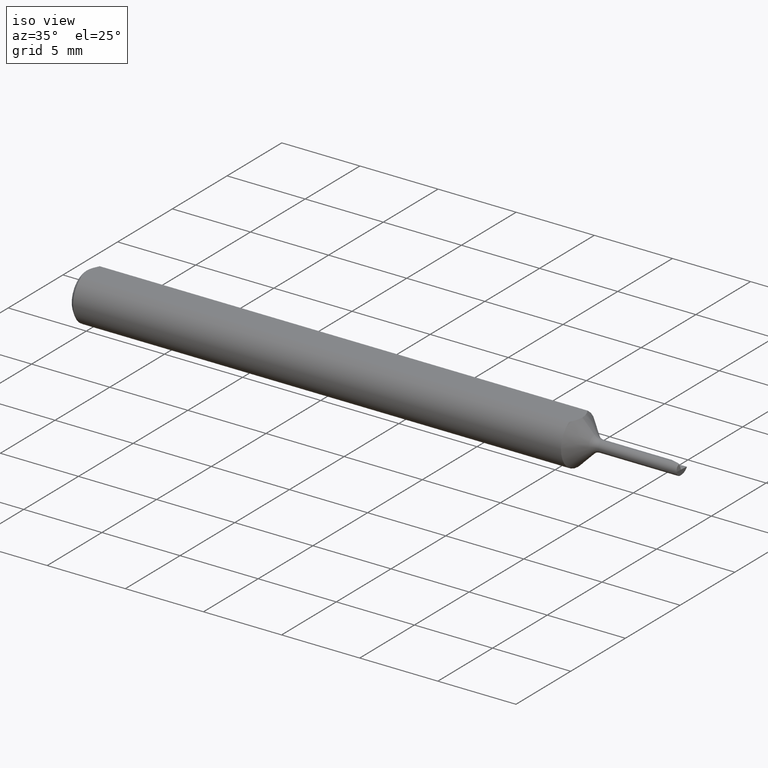
[diagram: clean part render]
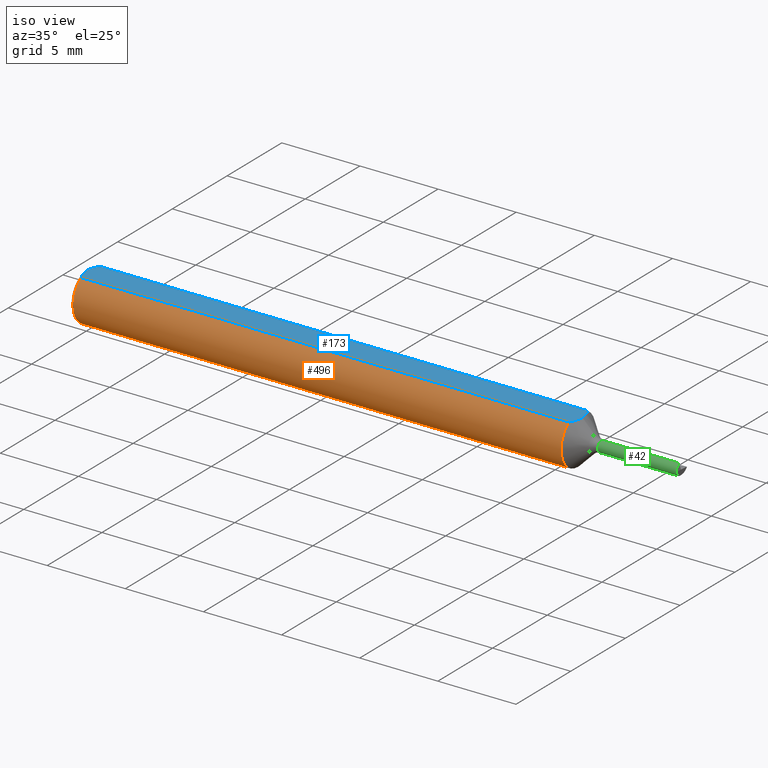
[diagram: same view with three faces highlighted in distinct colors, each labeled with its STEP entity id]
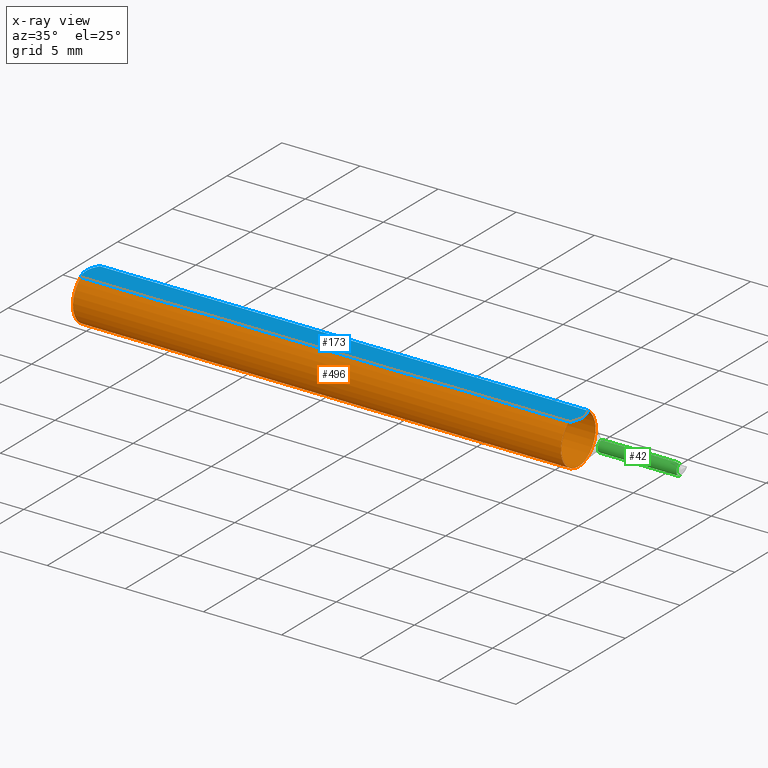
[diagram: x-ray of the same camera — body ghosted, the three highlighted faces saturated]
A machine part, iso view with three faces highlighted in distinct colors.
The next image is the same camera in x-ray (body ghosted, the three faces saturated) — at least one of them is partly hidden behind the body in this view.
Their STEP definitions:

[orange] entity #496 — the highlighted cylindrical surface (edge-blend (fillet) strip) has radius 1.5837 mm, axis along (-1, -0, -0).
#8 = VERTEX_POINT ( 'NONE', #613 ) ;
#23 = CARTESIAN_POINT ( 'NONE',  ( 0.000000000000000000, -0.03386738844375220686, 0.05235000000000000070 ) ) ;
#27 = CARTESIAN_POINT ( 'NONE',  ( 0.000000000000000000, 0.000000000000000000, 0.000000000000000000 ) ) ;
#34 = CARTESIAN_POINT ( 'NONE',  ( 0.009999999999999890921, 0.03386738844375217911, 0.05235000000000001458 ) ) ;
#36 = EDGE_CURVE ( 'NONE', #8, #101, #268, .T. ) ;
#39 = CARTESIAN_POINT ( 'NONE',  ( 0.009999999999999887451, 0.000000000000000000, 0.000000000000000000 ) ) ;
#45 = LINE ( 'NONE', #139, #115 ) ;
#52 = CARTESIAN_POINT ( 'NONE',  ( 1.239649999999999919, 0.000000000000000000, 0.000000000000000000 ) ) ;
#79 = CARTESIAN_POINT ( 'NONE',  ( 1.239649999999999919, 0.03386738844375220686, 0.05235000000000000070 ) ) ;
#87 = VERTEX_POINT ( 'NONE', #609 ) ;
#101 = VERTEX_POINT ( 'NONE', #635 ) ;
#109 = CIRCLE ( 'NONE', #477, 0.06235000000000000264 ) ;
#115 = VECTOR ( 'NONE', #218, 39.37007874015748143 ) ;
#120 = DIRECTION ( 'NONE',  ( 1.000000000000000000, 0.000000000000000000, 0.000000000000000000 ) ) ;
#139 = CARTESIAN_POINT ( 'NONE',  ( 0.000000000000000000, 0.03386738844375220686, 0.05235000000000000070 ) ) ;
#152 = ORIENTED_EDGE ( 'NONE', *, *, #167, .T. ) ;
#162 = AXIS2_PLACEMENT_3D ( 'NONE', #27, #511, #216 ) ;
#167 = EDGE_CURVE ( 'NONE', #101, #87, #336, .T. ) ;
#179 = DIRECTION ( 'NONE',  ( 0.000000000000000000, 0.000000000000000000, -1.000000000000000000 ) ) ;
#202 = CIRCLE ( 'NONE', #484, 0.06235000000000000264 ) ;
#210 = ORIENTED_EDGE ( 'NONE', *, *, #332, .T. ) ;
#216 = DIRECTION ( 'NONE',  ( 0.000000000000000000, 0.000000000000000000, 1.000000000000000000 ) ) ;
#218 = DIRECTION ( 'NONE',  ( 1.000000000000000000, 0.000000000000000000, 0.000000000000000000 ) ) ;
#223 = FACE_OUTER_BOUND ( 'NONE', #318, .T. ) ;
#227 = DIRECTION ( 'NONE',  ( 1.000000000000000000, 0.000000000000000000, 0.000000000000000000 ) ) ;
#235 = CIRCLE ( 'NONE', #328, 0.06235000000000000264 ) ;
#246 = VERTEX_POINT ( 'NONE', #34 ) ;
#259 = DIRECTION ( 'NONE',  ( 0.000000000000000000, 0.000000000000000000, 1.000000000000000000 ) ) ;
#268 = LINE ( 'NONE', #23, #487 ) ;
#279 = CYLINDRICAL_SURFACE ( 'NONE', #162, 0.06235000000000000264 ) ;
#303 = ORIENTED_EDGE ( 'NONE', *, *, #371, .T. ) ;
#318 = EDGE_LOOP ( 'NONE', ( #643, #210, #455, #152, #402, #303 ) ) ;
#321 = VERTEX_POINT ( 'NONE', #408 ) ;
#328 = AXIS2_PLACEMENT_3D ( 'NONE', #427, #366, #471 ) ;
#332 = EDGE_CURVE ( 'NONE', #321, #8, #202, .T. ) ;
#336 = CIRCLE ( 'NONE', #552, 0.06235000000000000264 ) ;
#366 = DIRECTION ( 'NONE',  ( -1.000000000000000000, -0.000000000000000000, -0.000000000000000000 ) ) ;
#371 = EDGE_CURVE ( 'NONE', #246, #551, #45, .T. ) ;
#387 = DIRECTION ( 'NONE',  ( 0.000000000000000000, 0.000000000000000000, -1.000000000000000000 ) ) ;
#402 = ORIENTED_EDGE ( 'NONE', *, *, #636, .T. ) ;
#408 = CARTESIAN_POINT ( 'NONE',  ( 1.239649999999999919, 7.635672792683746671E-18, -0.06235000000000000264 ) ) ;
#427 = CARTESIAN_POINT ( 'NONE',  ( 1.239649999999999919, 0.000000000000000000, 0.000000000000000000 ) ) ;
#453 = EDGE_CURVE ( 'NONE', #551, #321, #235, .T. ) ;
#455 = ORIENTED_EDGE ( 'NONE', *, *, #36, .T. ) ;
#467 = DIRECTION ( 'NONE',  ( -1.000000000000000000, -0.000000000000000000, -0.000000000000000000 ) ) ;
#471 = DIRECTION ( 'NONE',  ( 0.000000000000000000, 0.000000000000000000, 1.000000000000000000 ) ) ;
#477 = AXIS2_PLACEMENT_3D ( 'NONE', #519, #120, #387 ) ;
#484 = AXIS2_PLACEMENT_3D ( 'NONE', #52, #645, #259 ) ;
#487 = VECTOR ( 'NONE', #467, 39.37007874015748143 ) ;
#496 = ADVANCED_FACE ( 'NONE', ( #223 ), #279, .T. ) ;
#511 = DIRECTION ( 'NONE',  ( -1.000000000000000000, -0.000000000000000000, -0.000000000000000000 ) ) ;
#519 = CARTESIAN_POINT ( 'NONE',  ( 0.009999999999999887451, 0.000000000000000000, 0.000000000000000000 ) ) ;
#551 = VERTEX_POINT ( 'NONE', #79 ) ;
#552 = AXIS2_PLACEMENT_3D ( 'NONE', #39, #227, #179 ) ;
#609 = CARTESIAN_POINT ( 'NONE',  ( 0.009999999999999887451, 0.000000000000000000, -0.06235000000000000264 ) ) ;
#613 = CARTESIAN_POINT ( 'NONE',  ( 1.239649999999999919, -0.03386738844375220686, 0.05235000000000000070 ) ) ;
#635 = CARTESIAN_POINT ( 'NONE',  ( 0.01000000000000840841, -0.03386738844395137393, 0.05235000000000001458 ) ) ;
#636 = EDGE_CURVE ( 'NONE', #87, #246, #109, .T. ) ;
#643 = ORIENTED_EDGE ( 'NONE', *, *, #453, .T. ) ;
#645 = DIRECTION ( 'NONE',  ( -1.000000000000000000, -0.000000000000000000, -0.000000000000000000 ) ) ;

[blue] entity #173 — the highlighted planar face has unit normal (0, 0, -1).
#6 = CARTESIAN_POINT ( 'NONE',  ( 0.007163450771416182694, -0.02864528976632487248, 0.05235000000000001458 ) ) ;
#8 = VERTEX_POINT ( 'NONE', #613 ) ;
#20 = EDGE_CURVE ( 'NONE', #551, #607, #581, .T. ) ;
#23 = CARTESIAN_POINT ( 'NONE',  ( 0.000000000000000000, -0.03386738844375220686, 0.05235000000000000070 ) ) ;
#34 = CARTESIAN_POINT ( 'NONE',  ( 0.009999999999999890921, 0.03386738844375217911, 0.05235000000000001458 ) ) ;
#35 = DIRECTION ( 'NONE',  ( 0.000000000000000000, 0.000000000000000000, -1.000000000000000000 ) ) ;
#36 = EDGE_CURVE ( 'NONE', #8, #101, #268, .T. ) ;
#45 = LINE ( 'NONE', #139, #115 ) ;
#48 = CARTESIAN_POINT ( 'NONE',  ( 0.004679365186825695105, -0.02325953974091124477, 0.05235000000000000764 ) ) ;
#49 = EDGE_LOOP ( 'NONE', ( #549, #313, #509, #266, #457, #532 ) ) ;
#61 = CARTESIAN_POINT ( 'NONE',  ( 1.249649999999999928, 0.005921060704595572551, 0.05235000000000002152 ) ) ;
#70 = CARTESIAN_POINT ( 'NONE',  ( 1.239649999999999919, 0.03386738844375220686, 0.05235000000000000070 ) ) ;
#79 = CARTESIAN_POINT ( 'NONE',  ( 1.239649999999999919, 0.03386738844375220686, 0.05235000000000000070 ) ) ;
#81 = CARTESIAN_POINT ( 'NONE',  ( -1.099542139246802830E-15, 0.005954997531773979953, 0.05235000000000002152 ) ) ;
#100 = CARTESIAN_POINT ( 'NONE',  ( 1.242499562682860104, -0.02862133194396088848, 0.05235000000000002152 ) ) ;
#101 = VERTEX_POINT ( 'NONE', #635 ) ;
#114 = CARTESIAN_POINT ( 'NONE',  ( 1.244987470951200326, 0.02320690041070302967, 0.05235000000000002152 ) ) ;
#115 = VECTOR ( 'NONE', #218, 39.37007874015748143 ) ;
#117 = CARTESIAN_POINT ( 'NONE',  ( 1.249650000000000150, -3.532469938474420466E-21, 0.05235000000000001458 ) ) ;
#125 = CARTESIAN_POINT ( 'NONE',  ( 0.007185421074056205608, 0.02868573718286560742, 0.05235000000000002152 ) ) ;
#126 = CARTESIAN_POINT ( 'NONE',  ( 1.500000000000000222, 0.06235000000000000264, 0.05235000000000001458 ) ) ;
#139 = CARTESIAN_POINT ( 'NONE',  ( 0.000000000000000000, 0.03386738844375220686, 0.05235000000000000070 ) ) ;
#166 = VERTEX_POINT ( 'NONE', #181 ) ;
#171 = CARTESIAN_POINT ( 'NONE',  ( 1.249650000000000150, -3.532469938474420466E-21, 0.05235000000000001458 ) ) ;
#173 = ADVANCED_FACE ( 'NONE', ( #389 ), #293, .F. ) ;
#181 = CARTESIAN_POINT ( 'NONE',  ( 0.000000000000000000, 0.000000000000000000, 0.05235000000000033377 ) ) ;
#214 = CARTESIAN_POINT ( 'NONE',  ( 1.242494366674541162, 0.02863089781642877071, 0.05235000000000002152 ) ) ;
#218 = DIRECTION ( 'NONE',  ( 1.000000000000000000, 0.000000000000000000, 0.000000000000000000 ) ) ;
#220 = B_SPLINE_CURVE_WITH_KNOTS ( 'NONE', 3,
 ( #429, #125, #226, #482, #81, #281 ),
 .UNSPECIFIED., .F., .F.,
 ( 4, 2, 4 ),
 ( 0.0009229516234078821539, 0.001371626545108044996, 0.001820301466808207621 ),
 .UNSPECIFIED. ) ;
#226 = CARTESIAN_POINT ( 'NONE',  ( 0.004671770759546769666, 0.02323517832780105236, 0.05235000000000002152 ) ) ;
#234 = DIRECTION ( 'NONE',  ( -1.000000000000000000, 0.000000000000000000, -0.000000000000000000 ) ) ;
#241 = CARTESIAN_POINT ( 'NONE',  ( 0.000000000000000000, 0.000000000000000000, 0.05235000000000033377 ) ) ;
#244 = CARTESIAN_POINT ( 'NONE',  ( 0.001055043921644571291, -0.01186408073217194367, 0.05235000000000002152 ) ) ;
#246 = VERTEX_POINT ( 'NONE', #34 ) ;
#255 = CARTESIAN_POINT ( 'NONE',  ( 1.249650000000000150, -3.532469938474420466E-21, 0.05235000000000001458 ) ) ;
#266 = ORIENTED_EDGE ( 'NONE', *, *, #36, .F. ) ;
#268 = LINE ( 'NONE', #23, #487 ) ;
#274 = EDGE_CURVE ( 'NONE', #166, #101, #458, .T. ) ;
#281 = CARTESIAN_POINT ( 'NONE',  ( 0.000000000000000000, 0.000000000000000000, 0.05235000000000033377 ) ) ;
#284 = AXIS2_PLACEMENT_3D ( 'NONE', #126, #35, #234 ) ;
#293 = PLANE ( 'NONE',  #284 ) ;
#301 = CARTESIAN_POINT ( 'NONE',  ( 0.01000000000000840841, -0.03386738844395137393, 0.05235000000000001458 ) ) ;
#302 = EDGE_CURVE ( 'NONE', #607, #8, #543, .T. ) ;
#313 = ORIENTED_EDGE ( 'NONE', *, *, #588, .T. ) ;
#315 = CARTESIAN_POINT ( 'NONE',  ( 1.244984136213919790, -0.02321572383389657393, 0.05235000000000001458 ) ) ;
#356 = CARTESIAN_POINT ( 'NONE',  ( 1.248578451796299005, -0.01191733704899614575, 0.05235000000000002152 ) ) ;
#371 = EDGE_CURVE ( 'NONE', #246, #551, #45, .T. ) ;
#389 = FACE_OUTER_BOUND ( 'NONE', #49, .T. ) ;
#401 = CARTESIAN_POINT ( 'NONE',  ( 1.249650000000000150, -0.005923604052113095805, 0.05235000000000002152 ) ) ;
#425 = CARTESIAN_POINT ( 'NONE',  ( 1.248578772065486620, 0.01191466962039929023, 0.05235000000000001458 ) ) ;
#429 = CARTESIAN_POINT ( 'NONE',  ( 0.009999999999999890921, 0.03386738844375217911, 0.05235000000000001458 ) ) ;
#454 = CARTESIAN_POINT ( 'NONE',  ( -1.070637973615595603E-15, -0.005965286321711177862, 0.05235000000000002152 ) ) ;
#457 = ORIENTED_EDGE ( 'NONE', *, *, #302, .F. ) ;
#458 = B_SPLINE_CURVE_WITH_KNOTS ( 'NONE', 3,
 ( #241, #454, #244, #48, #6, #301 ),
 .UNSPECIFIED., .F., .F.,
 ( 4, 2, 4 ),
 ( 0.001820301466808207621, 0.002269751589840481119, 0.002719201712872754834 ),
 .UNSPECIFIED. ) ;
#467 = DIRECTION ( 'NONE',  ( -1.000000000000000000, -0.000000000000000000, -0.000000000000000000 ) ) ;
#482 = CARTESIAN_POINT ( 'NONE',  ( 0.001063697276021357847, 0.01189177144351693735, 0.05235000000000001458 ) ) ;
#487 = VECTOR ( 'NONE', #467, 39.37007874015748143 ) ;
#509 = ORIENTED_EDGE ( 'NONE', *, *, #274, .T. ) ;
#532 = ORIENTED_EDGE ( 'NONE', *, *, #20, .F. ) ;
#539 = CARTESIAN_POINT ( 'NONE',  ( 1.239649999999999919, -0.03386738844375220686, 0.05235000000000000070 ) ) ;
#543 = B_SPLINE_CURVE_WITH_KNOTS ( 'NONE', 3,
 ( #255, #401, #356, #315, #100, #539 ),
 .UNSPECIFIED., .F., .F.,
 ( 4, 2, 4 ),
 ( 0.002995647966321668236, 0.003444829281114803257, 0.003894010595907938278 ),
 .UNSPECIFIED. ) ;
#549 = ORIENTED_EDGE ( 'NONE', *, *, #371, .F. ) ;
#551 = VERTEX_POINT ( 'NONE', #79 ) ;
#581 = B_SPLINE_CURVE_WITH_KNOTS ( 'NONE', 3,
 ( #70, #214, #114, #425, #61, #117 ),
 .UNSPECIFIED., .F., .F.,
 ( 4, 2, 4 ),
 ( 0.002097671056027856137, 0.002546659511174761970, 0.002995647966321668236 ),
 .UNSPECIFIED. ) ;
#588 = EDGE_CURVE ( 'NONE', #246, #166, #220, .T. ) ;
#607 = VERTEX_POINT ( 'NONE', #171 ) ;
#613 = CARTESIAN_POINT ( 'NONE',  ( 1.239649999999999919, -0.03386738844375220686, 0.05235000000000000070 ) ) ;
#635 = CARTESIAN_POINT ( 'NONE',  ( 0.01000000000000840841, -0.03386738844395137393, 0.05235000000000001458 ) ) ;

[green] entity #42 — the highlighted cylindrical surface (edge-blend (fillet) strip) has radius 0.3556 mm, axis along (-1, -0, -0).
#14 = VERTEX_POINT ( 'NONE', #271 ) ;
#25 = DIRECTION ( 'NONE',  ( -1.000000000000000000, -0.000000000000000000, -0.000000000000000000 ) ) ;
#42 = ADVANCED_FACE ( 'NONE', ( #420 ), #616, .T. ) ;
#76 =( BOUNDED_CURVE ( )  B_SPLINE_CURVE ( 3, ( #238, #565, #634, #622 ),
 .UNSPECIFIED., .F., .T. ) 
 B_SPLINE_CURVE_WITH_KNOTS ( ( 4, 4 ),
 ( 5.951623123754044897, 7.298880934359459616 ),
 .UNSPECIFIED. ) 
 CURVE ( )  GEOMETRIC_REPRESENTATION_ITEM ( )  RATIONAL_B_SPLINE_CURVE ( ( 1.000000000000000000, 0.8543753402904480376, 0.8543753402904480376, 1.000000000000000000 ) ) 
 REPRESENTATION_ITEM ( '' )  );
#83 =( BOUNDED_CURVE ( )  B_SPLINE_CURVE ( 3, ( #503, #106, #320, #508 ),
 .UNSPECIFIED., .F., .F. ) 
 B_SPLINE_CURVE_WITH_KNOTS ( ( 4, 4 ),
 ( 4.766624254856835385, 4.990162771046303014 ),
 .UNSPECIFIED. ) 
 CURVE ( )  GEOMETRIC_REPRESENTATION_ITEM ( )  RATIONAL_B_SPLINE_CURVE ( ( 1.000000000000000000, 0.9958402108223218807, 0.9958402108223218807, 1.000000000000000000 ) ) 
 REPRESENTATION_ITEM ( '' )  );
#84 = AXIS2_PLACEMENT_3D ( 'NONE', #324, #276, #367 ) ;
#89 = CARTESIAN_POINT ( 'NONE',  ( 1.496362627902979137, 1.714505518806302634E-18, -0.01400000000000006795 ) ) ;
#106 = CARTESIAN_POINT ( 'NONE',  ( 1.493158059509906543, -0.002084192502463034190, 0.01388340427013589305 ) ) ;
#107 = EDGE_CURVE ( 'NONE', #169, #428, #175, .T. ) ;
#145 = EDGE_CURVE ( 'NONE', #364, #373, #569, .T. ) ;
#151 = VERTEX_POINT ( 'NONE', #383 ) ;
#169 = VERTEX_POINT ( 'NONE', #240 ) ;
#175 = LINE ( 'NONE', #344, #384 ) ;
#177 = CIRCLE ( 'NONE', #385, 0.01400000000000013560 ) ;
#230 = VECTOR ( 'NONE', #390, 39.37007874015748143 ) ;
#238 = CARTESIAN_POINT ( 'NONE',  ( 1.496140245165600069, -0.003103540699875354403, 0.01365166785137329232 ) ) ;
#240 = CARTESIAN_POINT ( 'NONE',  ( 1.487340442959101727, 0.000000000000000000, 0.01400000000000006795 ) ) ;
#252 = ORIENTED_EDGE ( 'NONE', *, *, #538, .T. ) ;
#267 = CARTESIAN_POINT ( 'NONE',  ( 1.298355339059327429, 0.000000000000000000, 0.01400000000000013560 ) ) ;
#269 = DIRECTION ( 'NONE',  ( 0.000000000000000000, 0.000000000000000000, 1.000000000000000000 ) ) ;
#271 = CARTESIAN_POINT ( 'NONE',  ( 1.496140245165600069, -0.003103540699875354403, 0.01365166785137329232 ) ) ;
#276 = DIRECTION ( 'NONE',  ( -1.000000000000000000, -0.000000000000000000, -0.000000000000000000 ) ) ;
#296 = CARTESIAN_POINT ( 'NONE',  ( 1.495645132487424922, -0.008201010126776844128, -0.01400000000000006795 ) ) ;
#320 = CARTESIAN_POINT ( 'NONE',  ( 1.490212539364918376, -0.001045357601660149016, 0.01400000000000006968 ) ) ;
#324 = CARTESIAN_POINT ( 'NONE',  ( 0.000000000000000000, 0.000000000000000000, 0.000000000000000000 ) ) ;
#344 = CARTESIAN_POINT ( 'NONE',  ( 0.000000000000000000, 0.000000000000000000, 0.01400000000000006795 ) ) ;
#353 = EDGE_LOOP ( 'NONE', ( #618, #502, #449, #252, #379, #637 ) ) ;
#364 = VERTEX_POINT ( 'NONE', #89 ) ;
#367 = DIRECTION ( 'NONE',  ( 0.000000000000000000, 0.000000000000000000, 1.000000000000000000 ) ) ;
#373 = VERTEX_POINT ( 'NONE', #608 ) ;
#379 = ORIENTED_EDGE ( 'NONE', *, *, #107, .T. ) ;
#380 = CARTESIAN_POINT ( 'NONE',  ( 0.000000000000000000, 1.714505518806302634E-18, -0.01400000000000006795 ) ) ;
#382 = LINE ( 'NONE', #380, #230 ) ;
#383 = CARTESIAN_POINT ( 'NONE',  ( 1.298355339059327429, 1.714505518806310916E-18, -0.01400000000000013560 ) ) ;
#384 = VECTOR ( 'NONE', #625, 39.37007874015748143 ) ;
#385 = AXIS2_PLACEMENT_3D ( 'NONE', #550, #25, #269 ) ;
#390 = DIRECTION ( 'NONE',  ( -1.000000000000000000, -0.000000000000000000, -0.000000000000000000 ) ) ;
#420 = FACE_OUTER_BOUND ( 'NONE', #353, .T. ) ;
#428 = VERTEX_POINT ( 'NONE', #267 ) ;
#449 = ORIENTED_EDGE ( 'NONE', *, *, #540, .F. ) ;
#464 = EDGE_CURVE ( 'NONE', #151, #428, #177, .T. ) ;
#486 = CARTESIAN_POINT ( 'NONE',  ( 1.497112874103644131, -0.01400000000000007662, 3.158700231727869641E-16 ) ) ;
#502 = ORIENTED_EDGE ( 'NONE', *, *, #145, .T. ) ;
#503 = CARTESIAN_POINT ( 'NONE',  ( 1.496140245165600069, -0.003103540699875354403, 0.01365166785137329232 ) ) ;
#508 = CARTESIAN_POINT ( 'NONE',  ( 1.487340442959101727, 0.000000000000000000, 0.01400000000000006795 ) ) ;
#523 = CARTESIAN_POINT ( 'NONE',  ( 1.496362627902979137, 1.714505518806302634E-18, -0.01400000000000006795 ) ) ;
#538 = EDGE_CURVE ( 'NONE', #14, #169, #83, .T. ) ;
#540 = EDGE_CURVE ( 'NONE', #14, #373, #76, .T. ) ;
#550 = CARTESIAN_POINT ( 'NONE',  ( 1.298355339059327429, 0.000000000000000000, 0.000000000000000000 ) ) ;
#565 = CARTESIAN_POINT ( 'NONE',  ( 1.495771991143534096, -0.009748761780967543991, 0.01214095763564205545 ) ) ;
#569 =( BOUNDED_CURVE ( )  B_SPLINE_CURVE ( 3, ( #523, #296, #574, #486 ),
 .UNSPECIFIED., .F., .F. ) 
 B_SPLINE_CURVE_WITH_KNOTS ( ( 4, 4 ),
 ( 5.728084607564589703, 7.298880934359509354 ),
 .UNSPECIFIED. ) 
 CURVE ( )  GEOMETRIC_REPRESENTATION_ITEM ( )  RATIONAL_B_SPLINE_CURVE ( ( 1.000000000000000000, 0.8047378541243596084, 0.8047378541243596084, 1.000000000000000000 ) ) 
 REPRESENTATION_ITEM ( '' )  );
#574 = CARTESIAN_POINT ( 'NONE',  ( 1.495955894638859140, -0.01400000000000024836, -0.008201010126776540551 ) ) ;
#608 = CARTESIAN_POINT ( 'NONE',  ( 1.497112874103644131, -0.01400000000000007662, 3.158700231727869641E-16 ) ) ;
#612 = EDGE_CURVE ( 'NONE', #364, #151, #382, .T. ) ;
#616 = CYLINDRICAL_SURFACE ( 'NONE', #84, 0.01400000000000006795 ) ;
#618 = ORIENTED_EDGE ( 'NONE', *, *, #612, .F. ) ;
#622 = CARTESIAN_POINT ( 'NONE',  ( 1.497112874103644131, -0.01400000000000007662, 3.158700231727869641E-16 ) ) ;
#625 = DIRECTION ( 'NONE',  ( -1.000000000000000000, -0.000000000000000000, -0.000000000000000000 ) ) ;
#634 = CARTESIAN_POINT ( 'NONE',  ( 1.496151460951153700, -0.01399999999999995519, 0.006814778688446889408 ) ) ;
#637 = ORIENTED_EDGE ( 'NONE', *, *, #464, .F. ) ;